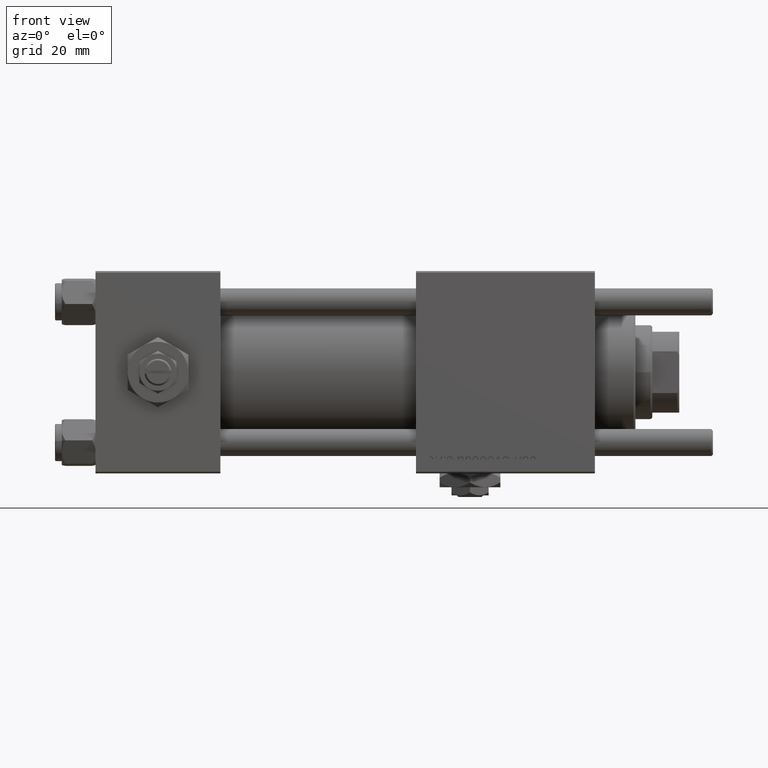
[diagram: clean part render]
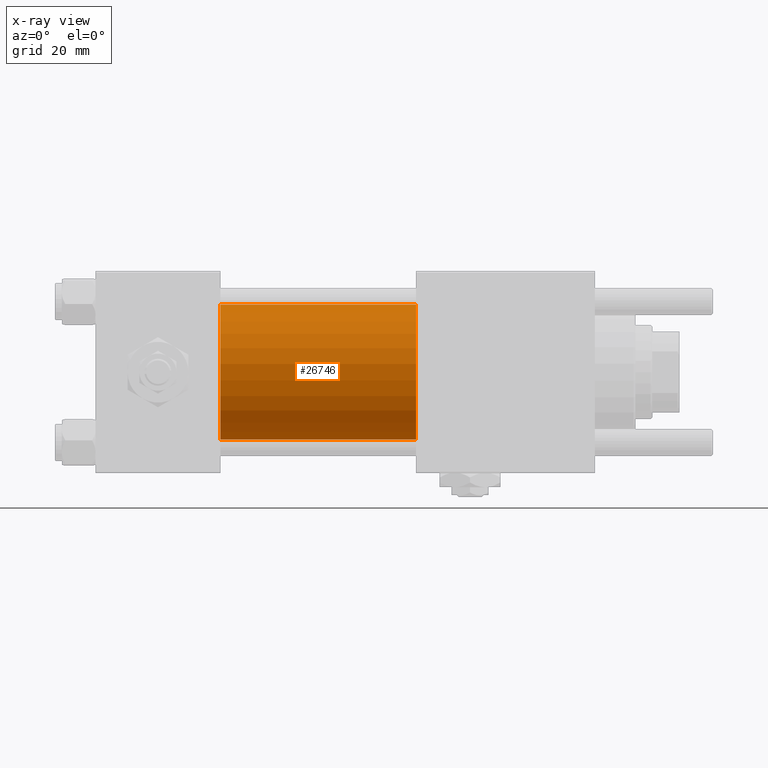
[diagram: x-ray — body ghosted, one internal face saturated and labeled with its STEP entity id]
A machine part, front view, then the same camera in x-ray: the body is ghosted and one INTERNAL B-rep face — a face not visible from any outside direction — is saturated and labeled: STEP entity #26746.
In plain terms, the highlighted cylindrical surface (partial cylindrical patch) has radius 20 mm, axis along (-1, -0, -0).
Its self-contained STEP definition (entity closure, byte-faithful):
#7695 = DIRECTION ( 'NONE',  ( 1.000000000000000000, 0.000000000000000000, 0.000000000000000000 ) ) ;
#7821 = DIRECTION ( 'NONE',  ( 0.000000000000000000, 0.000000000000000000, -1.000000000000000000 ) ) ;
#12161 = CARTESIAN_POINT ( 'NONE',  ( 95.00000000000000000, -2.602085213965210642E-15, 0.000000000000000000 ) ) ;
#12971 = EDGE_LOOP ( 'NONE', ( #37453, #49020, #27004, #44572 ) ) ;
#14629 = EDGE_CURVE ( 'NONE', #24556, #41252, #29212, .T. ) ;
#15703 = CARTESIAN_POINT ( 'NONE',  ( 37.00000000000000000, -1.527916156705046464E-16, -20.00000000000000000 ) ) ;
#17159 = DIRECTION ( 'NONE',  ( -1.000000000000000000, -0.000000000000000000, -0.000000000000000000 ) ) ;
#19687 = DIRECTION ( 'NONE',  ( -1.000000000000000000, -0.000000000000000000, -0.000000000000000000 ) ) ;
#19754 = CARTESIAN_POINT ( 'NONE',  ( 37.00000000000000000, -2.602085213965210642E-15, 20.00000000000000000 ) ) ;
#20360 = DIRECTION ( 'NONE',  ( 1.000000000000000000, 0.000000000000000000, 0.000000000000000000 ) ) ;
#20647 = CARTESIAN_POINT ( 'NONE',  ( 37.00000000000000000, -2.602085213965210642E-15, 0.000000000000000000 ) ) ;
#24382 = VECTOR ( 'NONE', #19687, 1000.000000000000000 ) ;
#24556 = VERTEX_POINT ( 'NONE', #29269 ) ;
#25017 = CARTESIAN_POINT ( 'NONE',  ( 95.00000000000000000, -2.602085213965210642E-15, 20.00000000000000000 ) ) ;
#26746 = ADVANCED_FACE ( 'NONE', ( #43671 ), #38904, .F. ) ;
#27004 = ORIENTED_EDGE ( 'NONE', *, *, #57498, .F. ) ;
#27198 = CARTESIAN_POINT ( 'NONE',  ( 95.00000000000000000, -1.527916156705046464E-16, -20.00000000000000000 ) ) ;
#28898 = CIRCLE ( 'NONE', #46017, 20.00000000000000000 ) ;
#29108 = AXIS2_PLACEMENT_3D ( 'NONE', #20647, #20360, #7821 ) ;
#29212 = LINE ( 'NONE', #25017, #24382 ) ;
#29269 = CARTESIAN_POINT ( 'NONE',  ( 95.00000000000000000, -2.602085213965210642E-15, 20.00000000000000000 ) ) ;
#31010 = CIRCLE ( 'NONE', #29108, 20.00000000000000000 ) ;
#31869 = CARTESIAN_POINT ( 'NONE',  ( 95.00000000000000000, -1.527916156705046464E-16, -20.00000000000000000 ) ) ;
#32877 = VECTOR ( 'NONE', #45362, 1000.000000000000000 ) ;
#36072 = AXIS2_PLACEMENT_3D ( 'NONE', #48149, #17159, #43960 ) ;
#37453 = ORIENTED_EDGE ( 'NONE', *, *, #40045, .T. ) ;
#38904 = CYLINDRICAL_SURFACE ( 'NONE', #36072, 20.00000000000000000 ) ;
#40045 = EDGE_CURVE ( 'NONE', #24556, #44173, #28898, .T. ) ;
#41252 = VERTEX_POINT ( 'NONE', #19754 ) ;
#43671 = FACE_OUTER_BOUND ( 'NONE', #12971, .T. ) ;
#43960 = DIRECTION ( 'NONE',  ( 0.000000000000000000, 0.000000000000000000, 1.000000000000000000 ) ) ;
#44014 = DIRECTION ( 'NONE',  ( 0.000000000000000000, 0.000000000000000000, -1.000000000000000000 ) ) ;
#44173 = VERTEX_POINT ( 'NONE', #31869 ) ;
#44572 = ORIENTED_EDGE ( 'NONE', *, *, #14629, .F. ) ;
#45362 = DIRECTION ( 'NONE',  ( -1.000000000000000000, -0.000000000000000000, -0.000000000000000000 ) ) ;
#46017 = AXIS2_PLACEMENT_3D ( 'NONE', #12161, #7695, #44014 ) ;
#47136 = VERTEX_POINT ( 'NONE', #15703 ) ;
#47599 = EDGE_CURVE ( 'NONE', #44173, #47136, #49840, .T. ) ;
#48149 = CARTESIAN_POINT ( 'NONE',  ( 95.00000000000000000, -2.602085213965210642E-15, 0.000000000000000000 ) ) ;
#49020 = ORIENTED_EDGE ( 'NONE', *, *, #47599, .T. ) ;
#49840 = LINE ( 'NONE', #27198, #32877 ) ;
#57498 = EDGE_CURVE ( 'NONE', #41252, #47136, #31010, .T. ) ;